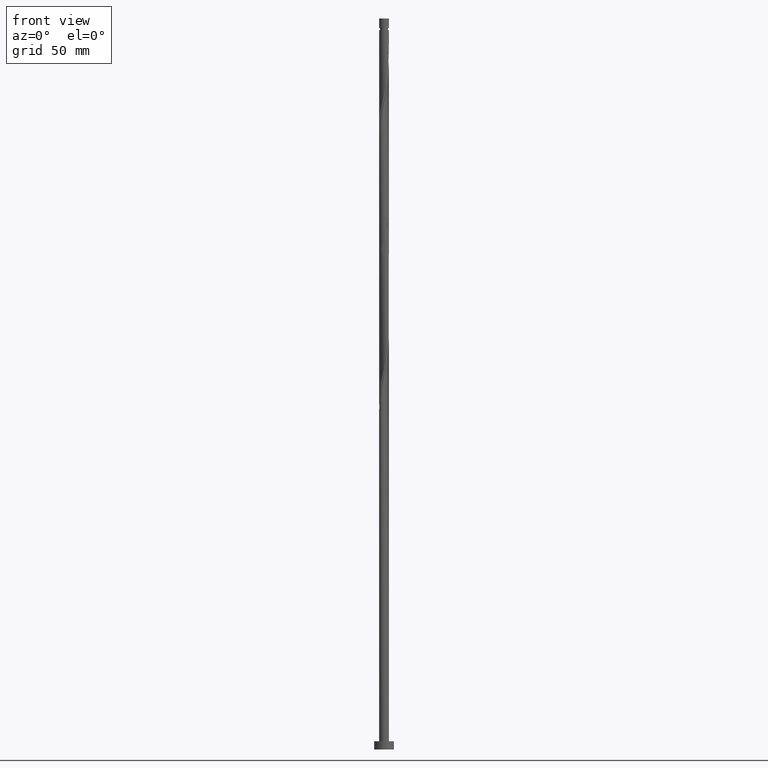
[diagram: clean part render]
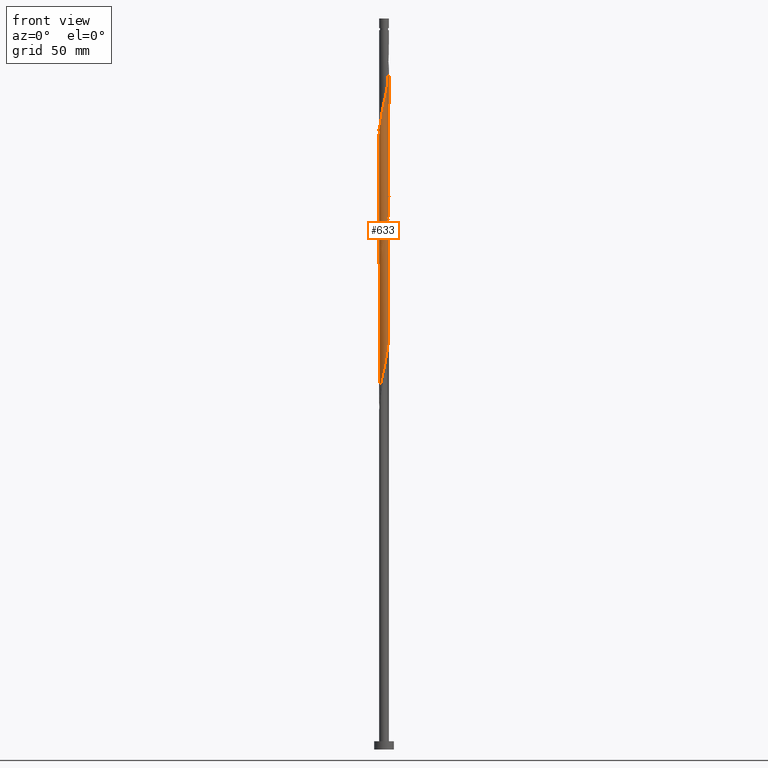
[diagram: same view with one face highlighted and labeled with its STEP entity id]
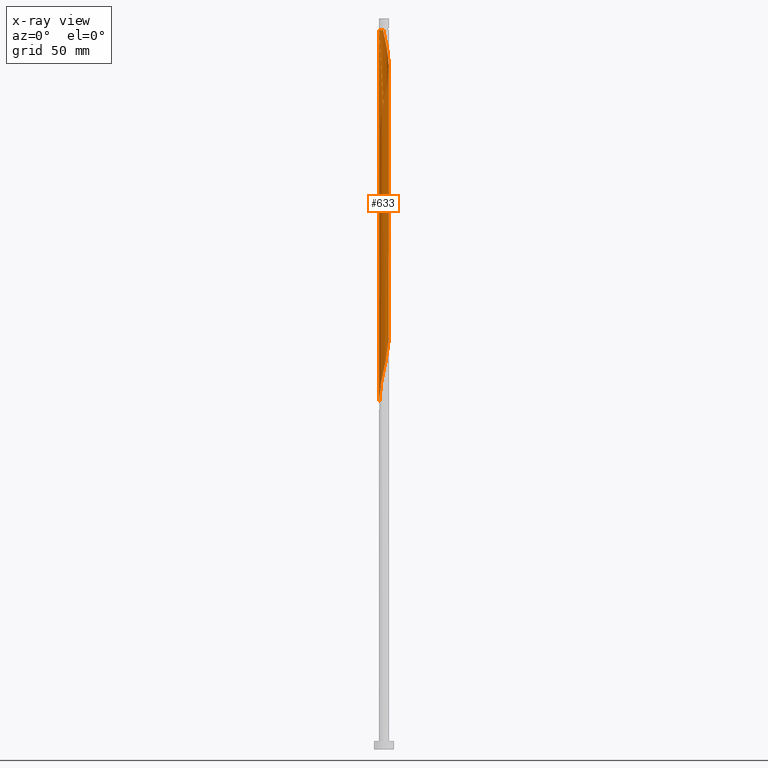
[diagram: x-ray of the same camera — body ghosted, the highlighted face saturated]
A machine part, front view. The second image highlights one B-rep face of the part: STEP entity #633.
The next image is the same camera in x-ray: the body ghosted, the highlighted face saturated — about 0% of this face is hidden behind the body in this view.
In plain terms, the highlighted cylindrical surface (bore or boss wall) has radius 3 mm, axis along (-0, -0, -1).
Its self-contained STEP definition (entity closure, byte-faithful):
#9 = CARTESIAN_POINT ( 'NONE',  ( 2.487746701027916618, -1.676638408102568922, 245.0764755701264903 ) ) ;
#10 = CARTESIAN_POINT ( 'NONE',  ( 2.129757576223802129, -2.112849418798544487, 403.9306422367931759 ) ) ;
#18 = CARTESIAN_POINT ( 'NONE',  ( -1.159086966227606430, -2.767041272681216135, 310.1806422367931191 ) ) ;
#26 = CARTESIAN_POINT ( 'NONE',  ( -2.129757576223799465, -2.112849418798540047, 304.9723089034597479 ) ) ;
#28 = CARTESIAN_POINT ( 'NONE',  ( 2.776191901540425278, 1.136995393931458986, 258.0973089034598047 ) ) ;
#37 = EDGE_CURVE ( 'NONE', #827, #1615, #1006, .T. ) ;
#44 =( BOUNDED_CURVE ( )  B_SPLINE_CURVE ( 2, ( #663, #1916, #1329, #1287, #1445, #1157, #1893, #1736, #974, #1757, #381, #997, #851, #1805, #716, #1815, #417, #1667, #1511, #876, #868, #1980, #1031, #1054, #1659, #1491, #137, #737, #1019, #1639, #119, #147, #1379, #728, #1371 ),
 .UNSPECIFIED., .F., .T. ) 
 B_SPLINE_CURVE_WITH_KNOTS ( ( 3, 2, 2, 2, 2, 2, 2, 2, 2, 2, 2, 2, 2, 2, 2, 2, 2, 3 ),
 ( 0.4295286902180872612, 0.4296875000000000000, 0.4375000000000000000, 0.4453125000000000000, 0.4531250000000000000, 0.4609375000000000000, 0.4687500000000000000, 0.4765625000000000000, 0.4843750000000000000, 0.4921875000000000000, 0.5000000000000000000, 0.5078125000000000000, 0.5156250000000000000, 0.5234375000000000000, 0.5312500000000000000, 0.5390625000000000000, 0.5468750000000000000, 0.5545286902180874833 ),
 .UNSPECIFIED. ) 
 CURVE ( )  GEOMETRIC_REPRESENTATION_ITEM ( )  RATIONAL_B_SPLINE_CURVE ( ( 0.9089165573359683226, 0.9090019243628730816, 0.9090909090909647938, 0.9047133878838706789, 0.9090909090909647938, 0.9047133878838706789, 0.9090909090909647938, 0.9047133878838706789, 0.9090909090909647938, 0.9047133878838706789, 0.9090909090909647938, 0.9047133878838706789, 0.9090909090909647938, 0.9047133878838706789, 0.9090909090909647938, 0.9047133878838706789, 0.9090909090909647938, 0.9047133878838706789, 0.9090909090909647938, 0.9047133878838706789, 0.9090909090909647938, 0.9047133878838706789, 0.9090909090909647938, 0.9047133878838706789, 0.9090909090909647938, 0.9047133878838706789, 0.9090909090909647938, 0.9047133878838706789, 0.9090909090909647938, 0.9047133878838706789, 0.9090909090909647938, 0.9047133878838706789, 0.9090909090909647938, 0.9048023726119623911, 0.9089165573359684336 ) ) 
 REPRESENTATION_ITEM ( '' )  );
#47 = CARTESIAN_POINT ( 'NONE',  ( 2.501031355072564466, -1.656756518304340897, 406.5348089034598047 ) ) ;
#58 = CARTESIAN_POINT ( 'NONE',  ( 1.921660071883965593, -2.322612231291377949, 402.6285589034597479 ) ) ;
#77 = CARTESIAN_POINT ( 'NONE',  ( 0.5735401742041593698, -2.944664950138446535, 234.6598089034597763 ) ) ;
#110 = CARTESIAN_POINT ( 'NONE',  ( 0.5735401742041630335, 2.944664950138451420, 432.5764755701264903 ) ) ;
#113 = ORIENTED_EDGE ( 'NONE', *, *, #1939, .F. ) ;
#119 = CARTESIAN_POINT ( 'NONE',  ( 2.776191901540425278, 1.136995393931458986, 341.4306422367931191 ) ) ;
#132 = CARTESIAN_POINT ( 'NONE',  ( 2.998798625402026907, -0.3074277363939146857, 334.9202255701265472 ) ) ;
#137 = CARTESIAN_POINT ( 'NONE',  ( 2.129757576223799465, 2.112849418798539602, 346.6389755701264335 ) ) ;
#147 = CARTESIAN_POINT ( 'NONE',  ( 2.888176173499368282, 0.8635643575599492028, 340.1285589034599184 ) ) ;
#150 = CARTESIAN_POINT ( 'NONE',  ( -1.136995393931460541, 2.776191901540425278, 278.9306422367931191 ) ) ;
#152 = CARTESIAN_POINT ( 'NONE',  ( -1.136995393931462539, -2.776191901540430607, 388.3056422367931191 ) ) ;
#160 = CARTESIAN_POINT ( 'NONE',  ( -0.8635643575599494248, 2.888176173499368282, 277.6285589034598047 ) ) ;
#161 = CARTESIAN_POINT ( 'NONE',  ( -2.322612231291377949, -1.921660071883965593, 381.7952255701265472 ) ) ;
#170 = CARTESIAN_POINT ( 'NONE',  ( 2.337855080563638221, 1.903086606305703254, 262.0035589034598615 ) ) ;
#186 = CARTESIAN_POINT ( 'NONE',  ( -2.888176173499368282, -0.8635643575599497579, 298.4618922367931191 ) ) ;
#197 = CARTESIAN_POINT ( 'NONE',  ( -2.998798625402031348, -0.3074277363939123542, 373.9827255701264903 ) ) ;
#209 = CARTESIAN_POINT ( 'NONE',  ( -0.8635643575599516453, -2.888176173499370503, 389.6077255701264335 ) ) ;
#218 = CARTESIAN_POINT ( 'NONE',  ( -0.3074277363939130203, -2.998798625402027351, 314.0868922367932896 ) ) ;
#217 = CARTESIAN_POINT ( 'NONE',  ( 2.112849418798544487, 2.129757576223802129, 424.7639755701265472 ) ) ;
#221 = VERTEX_POINT ( 'NONE', #1153 ) ;
#242 = CARTESIAN_POINT ( 'NONE',  ( -0.01195587277277116757, -2.999976176089777624, 232.0556422367931191 ) ) ;
#256 = CYLINDRICAL_SURFACE ( 'NONE', #784, 3.000000000000000444 ) ;
#258 = CARTESIAN_POINT ( 'NONE',  ( 2.999999999999999556, 1.128549029991760885E-15, 336.2750058814565364 ) ) ;
#260 = CARTESIAN_POINT ( 'NONE',  ( -1.921660071883963150, -2.322612231291373952, 222.9410589034598047 ) ) ;
#278 = CARTESIAN_POINT ( 'NONE',  ( -1.903086606305704365, 2.337855080563637777, 282.8368922367931759 ) ) ;
#303 = CARTESIAN_POINT ( 'NONE',  ( 0.01195587277277158564, 2.999976176089777624, 273.7223089034597479 ) ) ;
#313 = CARTESIAN_POINT ( 'NONE',  ( 2.776191901540429718, -1.136995393931462761, 409.1389755701264903 ) ) ;
#321 = CARTESIAN_POINT ( 'NONE',  ( 0.3074277363939121877, -2.998798625402031348, 394.8160589034598047 ) ) ;
#323 = VERTEX_POINT ( 'NONE', #908 ) ;
#352 = CARTESIAN_POINT ( 'NONE',  ( 1.676638408102569588, -2.487746701027922835, 401.3264755701264903 ) ) ;
#355 = ORIENTED_EDGE ( 'NONE', *, *, #725, .F. ) ;
#363 = CARTESIAN_POINT ( 'NONE',  ( 2.322612231291377949, 1.921660071883965148, 423.4618922367931191 ) ) ;
#377 = CARTESIAN_POINT ( 'NONE',  ( -2.888176173499368282, -0.8635643575599497579, 215.1285589034598331 ) ) ;
#381 = CARTESIAN_POINT ( 'NONE',  ( -2.112849418798539602, 2.129757576223800353, 367.4723089034598047 ) ) ;
#383 = CARTESIAN_POINT ( 'NONE',  ( -0.3074277363939132424, 2.998798625402031792, 436.4827255701264903 ) ) ;
#417 = CARTESIAN_POINT ( 'NONE',  ( -0.5735401742041597029, 2.944664950138446091, 359.6598089034597479 ) ) ;
#419 = DIRECTION ( 'NONE',  ( -0.000000000000000000, -0.000000000000000000, -1.000000000000000000 ) ) ;
#432 = CARTESIAN_POINT ( 'NONE',  ( -0.8865571881340393867, -2.881201374597972098, 228.1493922367932043 ) ) ;
#441 = CARTESIAN_POINT ( 'NONE',  ( 3.000000000000000444, 3.673940397442060361E-16, 437.7848089034598047 ) ) ;
#450 = CARTESIAN_POINT ( 'NONE',  ( -2.881201374597976539, -0.8865571881340396088, 376.5868922367931191 ) ) ;
#461 = CARTESIAN_POINT ( 'NONE',  ( 1.903086606305703699, -2.337855080563638221, 241.1702255701265756 ) ) ;
#468 = LINE ( 'NONE', #1097, #1045 ) ;
#477 = CARTESIAN_POINT ( 'NONE',  ( -0.5735401742041597029, 2.944664950138446091, 276.3264755701264335 ) ) ;
#478 = CARTESIAN_POINT ( 'NONE',  ( 2.881201374597972542, -0.8865571881340383875, 332.3160589034598047 ) ) ;
#492 = CARTESIAN_POINT ( 'NONE',  ( -2.939999999999999947, 0.5969924622639759537, 291.9514755701264335 ) ) ;
#495 = CARTESIAN_POINT ( 'NONE',  ( 1.136995393931459208, -2.776191901540425278, 320.5973089034598047 ) ) ;
#507 = CARTESIAN_POINT ( 'NONE',  ( 0.2835159908483691482, -3.001153726777527897, 316.6910589034599752 ) ) ;
#506 = CARTESIAN_POINT ( 'NONE',  ( 2.999976176089782065, 0.01195587277276977979, 414.3473089034598047 ) ) ;
#524 = CARTESIAN_POINT ( 'NONE',  ( -2.999999999999999556, -8.340638991268588486E-16, 211.2750058814566501 ) ) ;
#528 = CARTESIAN_POINT ( 'NONE',  ( -3.000000000000000444, 0.000000000000000000, 444.8000000000000114 ) ) ;
#542 = CARTESIAN_POINT ( 'NONE',  ( -2.767041272681216135, 1.159086966227605320, 289.3473089034598047 ) ) ;
#550 = AXIS2_PLACEMENT_3D ( 'NONE', #1008, #674, #985 ) ;
#556 = CARTESIAN_POINT ( 'NONE',  ( -0.5969924622639761758, -2.939999999999999947, 229.4514755701264619 ) ) ;
#574 = CARTESIAN_POINT ( 'NONE',  ( -3.000000000000000444, 0.000000000000000000, 444.8000000000000114 ) ) ;
#595 = CARTESIAN_POINT ( 'NONE',  ( 3.001153726777527897, 0.2835159908483690372, 254.1910589034598900 ) ) ;
#603 = CARTESIAN_POINT ( 'NONE',  ( 2.940000000000004832, 0.5969924622639757317, 416.9514755701264903 ) ) ;
#606 = ORIENTED_EDGE ( 'NONE', *, *, #623, .T. ) ;
#612 = CARTESIAN_POINT ( 'NONE',  ( 2.322612231291373952, -1.921660071883963372, 243.7743922367932043 ) ) ;
#614 = CARTESIAN_POINT ( 'NONE',  ( 2.944664950138451420, -0.5735401742041628115, 411.7431422367931191 ) ) ;
#621 = CARTESIAN_POINT ( 'NONE',  ( -1.676638408102567590, -2.487746701027918395, 307.5764755701264335 ) ) ;
#623 = EDGE_CURVE ( 'NONE', #1898, #827, #468, .T. ) ;
#625 = CARTESIAN_POINT ( 'NONE',  ( 2.129757576223799465, 2.112849418798539602, 263.3056422367931759 ) ) ;
#631 = CARTESIAN_POINT ( 'NONE',  ( -2.664207629581485381, -1.410426430302970768, 301.0660589034598047 ) ) ;
#633 = ADVANCED_FACE ( 'NONE', ( #771 ), #256, .T. ) ;
#641 = CARTESIAN_POINT ( 'NONE',  ( -1.431616744321172474, -2.652881170764462393, 308.8785589034598615 ) ) ;
#651 = CARTESIAN_POINT ( 'NONE',  ( -1.921660071883963150, -2.322612231291373952, 306.2743922367932328 ) ) ;
#663 = CARTESIAN_POINT ( 'NONE',  ( -2.999999999999999556, -8.340638991268588486E-16, 377.9416725481233357 ) ) ;
#666 = CARTESIAN_POINT ( 'NONE',  ( 2.112849418798539602, -2.129757576223799465, 325.8056422367931191 ) ) ;
#665 = CARTESIAN_POINT ( 'NONE',  ( 2.888176173499370503, -0.8635643575599518673, 410.4410589034598047 ) ) ;
#674 = DIRECTION ( 'NONE',  ( -0.000000000000000000, -0.000000000000000000, -1.000000000000000000 ) ) ;
#677 = CARTESIAN_POINT ( 'NONE',  ( -0.5969924622639761758, -2.939999999999999947, 312.7848089034597479 ) ) ;
#693 = ORIENTED_EDGE ( 'NONE', *, *, #1440, .T. ) ;
#711 = CARTESIAN_POINT ( 'NONE',  ( -2.487746701027918395, 1.676638408102567368, 286.7431422367931191 ) ) ;
#716 = CARTESIAN_POINT ( 'NONE',  ( -1.136995393931460541, 2.776191901540425278, 362.2639755701264335 ) ) ;
#718 = VECTOR ( 'NONE', #419, 1000.000000000000000 ) ;
#719 = CARTESIAN_POINT ( 'NONE',  ( 0.000000000000000000, 0.000000000000000000, 444.8000000000000114 ) ) ;
#725 = EDGE_CURVE ( 'NONE', #1928, #221, #1505, .T. ) ;
#728 = CARTESIAN_POINT ( 'NONE',  ( 3.000000000000002665, 0.2894394447869312881, 337.5509859868726608 ) ) ;
#737 = CARTESIAN_POINT ( 'NONE',  ( 2.337855080563638221, 1.903086606305703254, 345.3368922367932328 ) ) ;
#763 = CARTESIAN_POINT ( 'NONE',  ( 2.664207629581487602, -1.410426430302975209, 407.8368922367931191 ) ) ;
#771 = FACE_OUTER_BOUND ( 'NONE', #1333, .T. ) ;
#774 = CARTESIAN_POINT ( 'NONE',  ( 2.767041272681216135, -1.159086966227606430, 247.6806422367931191 ) ) ;
#784 = AXIS2_PLACEMENT_3D ( 'NONE', #719, #862, #1332 ) ;
#793 = CARTESIAN_POINT ( 'NONE',  ( -2.501031355072560025, -1.656756518304338011, 302.3681422367931191 ) ) ;
#795 = CARTESIAN_POINT ( 'NONE',  ( 0.5969924622639766199, 2.939999999999999947, 271.1181422367931191 ) ) ;
#803 = CARTESIAN_POINT ( 'NONE',  ( 0.8865571881340386096, 2.881201374597972542, 269.8160589034598047 ) ) ;
#804 = CARTESIAN_POINT ( 'NONE',  ( 2.652881170764462393, -1.431616744321172474, 329.7118922367932896 ) ) ;
#812 = CARTESIAN_POINT ( 'NONE',  ( -2.999999999999959144, 0.000000000000000000, 437.7848089034598047 ) ) ;
#824 = CARTESIAN_POINT ( 'NONE',  ( -2.112849418798544043, -2.129757576223802129, 383.0973089034598047 ) ) ;
#827 = VERTEX_POINT ( 'NONE', #1850 ) ;
#836 = ORIENTED_EDGE ( 'NONE', *, *, #1547, .F. ) ;
#844 = CARTESIAN_POINT ( 'NONE',  ( 1.903086606305707251, 2.337855080563640886, 426.0660589034598047 ) ) ;
#851 = CARTESIAN_POINT ( 'NONE',  ( -1.656756518304338011, 2.501031355072560469, 364.8681422367931191 ) ) ;
#862 = DIRECTION ( 'NONE',  ( -0.000000000000000000, -0.000000000000000000, -1.000000000000000000 ) ) ;
#863 = CARTESIAN_POINT ( 'NONE',  ( 2.999999999999999556, -0.005977960122795210676, 336.2486523269392933 ) ) ;
#864 = CARTESIAN_POINT ( 'NONE',  ( -1.676638408102567590, -2.487746701027918395, 224.2431422367931475 ) ) ;
#868 = CARTESIAN_POINT ( 'NONE',  ( 0.5969924622639766199, 2.939999999999999947, 354.4514755701264903 ) ) ;
#870 = CARTESIAN_POINT ( 'NONE',  ( 1.656756518304340897, 2.501031355072564022, 427.3681422367930622 ) ) ;
#876 = CARTESIAN_POINT ( 'NONE',  ( 0.3074277363939130203, 2.998798625402027351, 355.7535589034599184 ) ) ;
#878 = VECTOR ( 'NONE', #1465, 1000.000000000000000 ) ;
#881 = ORIENTED_EDGE ( 'NONE', *, *, #37, .F. ) ;
#907 = CARTESIAN_POINT ( 'NONE',  ( -2.940000000000004832, -0.5969924622639761758, 375.2848089034598615 ) ) ;
#908 = CARTESIAN_POINT ( 'NONE',  ( -3.000000000000005329, 1.708200142010639410E-15, 372.6279452587962737 ) ) ;
#916 = CARTESIAN_POINT ( 'NONE',  ( 2.888176173499368282, 0.8635643575599492028, 256.7952255701264903 ) ) ;
#917 = CARTESIAN_POINT ( 'NONE',  ( -3.000000000000005773, -0.005977960122786295065, 372.6542988133136305 ) ) ;
#934 = CARTESIAN_POINT ( 'NONE',  ( -0.8865571881340393867, -2.881201374597972098, 311.4827255701265472 ) ) ;
#935 = DIRECTION ( 'NONE',  ( -0.000000000000000000, -0.000000000000000000, -1.000000000000000000 ) ) ;
#937 = CARTESIAN_POINT ( 'NONE',  ( 2.939999999999999947, -0.5969924622639762868, 250.2848089034597763 ) ) ;
#948 = CARTESIAN_POINT ( 'NONE',  ( 1.159086966227606652, 2.767041272681216135, 268.5139755701264903 ) ) ;
#965 = CARTESIAN_POINT ( 'NONE',  ( 2.337855080563639554, -1.903086606305708139, 405.2327255701264335 ) ) ;
#968 = ORIENTED_EDGE ( 'NONE', *, *, #1334, .T. ) ;
#974 = CARTESIAN_POINT ( 'NONE',  ( -2.487746701027918395, 1.676638408102567368, 370.0764755701264903 ) ) ;
#976 = CARTESIAN_POINT ( 'NONE',  ( 0.5969924622639760647, -2.940000000000004832, 396.1181422367931191 ) ) ;
#985 = DIRECTION ( 'NONE',  ( -1.000000000000000000, 0.000000000000000000, 0.000000000000000000 ) ) ;
#990 = ORIENTED_EDGE ( 'NONE', *, *, #623, .F. ) ;
#997 = CARTESIAN_POINT ( 'NONE',  ( -1.903086606305704365, 2.337855080563637777, 366.1702255701266040 ) ) ;
#1006 =( BOUNDED_CURVE ( )  B_SPLINE_CURVE ( 2, ( #258, #863, #1243, #132, #1867, #478, #1720, #804, #1268, #1572, #666, #1417, #1877, #1116, #495, #1125, #1437, #507, #1136, #218, #677, #934, #18, #641, #621, #651, #26, #1552, #793, #631, #1258, #186, #1865, #1707, #1278, #1884, #492, #1026, #542, #1625, #711, #1799, #1646, #278, #1496, #1523, #150, #160, #477, #1680, #303, #1260, #795, #803, #948, #1522, #1408, #1974, #625, #170, #1544, #1106, #28, #916, #1241, #595, #1076, #1222, #937, #1533, #774, #1067, #9, #612, #1848, #461, #1090, #1252, #1859, #1701, #77, #1159, #242, #1719, #556, #432, #1012, #1784, #864, #260, #1461, #1801, #1765, #1478, #1163, #377, #1336, #1788, #524 ),
 .UNSPECIFIED., .F., .T. ) 
 B_SPLINE_CURVE_WITH_KNOTS ( ( 3, 2, 2, 2, 2, 2, 2, 2, 2, 2, 2, 2, 2, 2, 2, 2, 2, 2, 2, 2, 2, 2, 2, 2, 2, 2, 2, 2, 2, 2, 2, 2, 2, 2, 2, 2, 2, 2, 2, 2, 2, 2, 2, 2, 2, 2, 2, 2, 2, 3 ),
 ( 0.5545286902180874833, 0.5546875000000000000, 0.5625000000000000000, 0.5703125000000000000, 0.5781250000000000000, 0.5859375000000000000, 0.5937500000000000000, 0.6015625000000000000, 0.6093750000000000000, 0.6171875000000000000, 0.6250000000000000000, 0.6328125000000000000, 0.6406250000000000000, 0.6484375000000000000, 0.6562500000000000000, 0.6640625000000000000, 0.6718750000000000000, 0.6796875000000000000, 0.6875000000000000000, 0.6953125000000000000, 0.7031250000000000000, 0.7109375000000000000, 0.7187500000000000000, 0.7265625000000000000, 0.7343750000000000000, 0.7421875000000000000, 0.7500000000000000000, 0.7578125000000000000, 0.7656250000000000000, 0.7734375000000000000, 0.7812500000000000000, 0.7890625000000000000, 0.7968750000000000000, 0.8046875000000000000, 0.8125000000000000000, 0.8203125000000000000, 0.8281250000000000000, 0.8359375000000000000, 0.8437500000000000000, 0.8515625000000000000, 0.8593750000000000000, 0.8671875000000000000, 0.8750000000000000000, 0.8828125000000000000, 0.8906250000000000000, 0.8984375000000000000, 0.9062500000000000000, 0.9140625000000000000, 0.9218750000000000000, 0.9295286902180872612 ),
 .UNSPECIFIED. ) 
 CURVE ( )  GEOMETRIC_REPRESENTATION_ITEM ( )  RATIONAL_B_SPLINE_CURVE ( ( 0.9089165573359684336, 0.9090019243628730816, 0.9090909090909647938, 0.9047133878838706789, 0.9090909090909647938, 0.9047133878838706789, 0.9090909090909647938, 0.9047133878838706789, 0.9090909090909647938, 0.9047133878838706789, 0.9090909090909647938, 0.9047133878838706789, 0.9090909090909647938, 0.9047133878838706789, 0.9090909090909647938, 0.9047133878838706789, 0.9090909090909647938, 0.9047133878838706789, 0.9090909090909647938, 0.9047133878838706789, 0.9090909090909647938, 0.9047133878838706789, 0.9090909090909647938, 0.9047133878838706789, 0.9090909090909647938, 0.9047133878838706789, 0.9090909090909647938, 0.9047133878838706789, 0.9090909090909647938, 0.9047133878838706789, 0.9090909090909647938, 0.9047133878838706789, 0.9090909090909647938, 0.9047133878838706789, 0.9090909090909647938, 0.9047133878838706789, 0.9090909090909647938, 0.9047133878838706789, 0.9090909090909647938, 0.9047133878838706789, 0.9090909090909647938, 0.9047133878838706789, 0.9090909090909647938, 0.9047133878838706789, 0.9090909090909647938, 0.9047133878838706789, 0.9090909090909647938, 0.9047133878838706789, 0.9090909090909647938, 0.9047133878838706789, 0.9090909090909647938, 0.9047133878838706789, 0.9090909090909647938, 0.9047133878838706789, 0.9090909090909647938, 0.9047133878838706789, 0.9090909090909647938, 0.9047133878838706789, 0.9090909090909647938, 0.9047133878838706789, 0.9090909090909647938, 0.9047133878838706789, 0.9090909090909647938, 0.9047133878838706789, 0.9090909090909647938, 0.9047133878838706789, 0.9090909090909647938, 0.9047133878838706789, 0.9090909090909647938, 0.9047133878838706789, 0.9090909090909647938, 0.9047133878838706789, 0.9090909090909647938, 0.9047133878838706789, 0.9090909090909647938, 0.9047133878838706789, 0.9090909090909647938, 0.9047133878838706789, 0.9090909090909647938, 0.9047133878838706789, 0.9090909090909647938, 0.9047133878838706789, 0.9090909090909647938, 0.9047133878838706789, 0.9090909090909647938, 0.9047133878838706789, 0.9090909090909647938, 0.9047133878838706789, 0.9090909090909647938, 0.9047133878838706789, 0.9090909090909647938, 0.9047133878838706789, 0.9090909090909647938, 0.9047133878838706789, 0.9090909090909647938, 0.9047133878838706789, 0.9090909090909647938, 0.9048023726119623911, 0.9089165573359683226 ) ) 
 REPRESENTATION_ITEM ( '' )  );
#1008 = CARTESIAN_POINT ( 'NONE',  ( 0.000000000000000000, 0.000000000000000000, 437.7848089034598047 ) ) ;
#1012 = CARTESIAN_POINT ( 'NONE',  ( -1.159086966227606430, -2.767041272681216135, 226.8473089034598331 ) ) ;
#1019 = CARTESIAN_POINT ( 'NONE',  ( 2.501031355072560469, 1.656756518304337567, 344.0348089034597479 ) ) ;
#1026 = CARTESIAN_POINT ( 'NONE',  ( -2.881201374597972098, 0.8865571881340391647, 290.6493922367932328 ) ) ;
#1031 = CARTESIAN_POINT ( 'NONE',  ( 1.159086966227606652, 2.767041272681216135, 351.8473089034598047 ) ) ;
#1034 = CARTESIAN_POINT ( 'NONE',  ( 0.2835159908483712576, 3.001153726777531894, 433.8785589034598047 ) ) ;
#1045 = VECTOR ( 'NONE', #935, 1000.000000000000000 ) ;
#1054 = CARTESIAN_POINT ( 'NONE',  ( 1.431616744321172918, 2.652881170764462393, 350.5452255701264903 ) ) ;
#1067 = CARTESIAN_POINT ( 'NONE',  ( 2.652881170764462393, -1.431616744321172474, 246.3785589034598331 ) ) ;
#1076 = CARTESIAN_POINT ( 'NONE',  ( 2.999976176089777624, -0.01195587277277137747, 252.8889755701264619 ) ) ;
#1079 = CARTESIAN_POINT ( 'NONE',  ( -1.903086606305707917, -2.337855080563639998, 384.3993922367931759 ) ) ;
#1090 = CARTESIAN_POINT ( 'NONE',  ( 1.656756518304338011, -2.501031355072560469, 239.8681422367931475 ) ) ;
#1097 = CARTESIAN_POINT ( 'NONE',  ( 3.000000000000000444, 3.673940397442060361E-16, 444.8000000000000114 ) ) ;
#1106 = CARTESIAN_POINT ( 'NONE',  ( 2.664207629581484937, 1.410426430302972101, 259.3993922367931759 ) ) ;
#1116 = CARTESIAN_POINT ( 'NONE',  ( 1.410426430302970768, -2.664207629581485381, 321.8993922367930622 ) ) ;
#1125 = CARTESIAN_POINT ( 'NONE',  ( 0.8635643575599494248, -2.888176173499368282, 319.2952255701265472 ) ) ;
#1136 = CARTESIAN_POINT ( 'NONE',  ( -0.01195587277277116757, -2.999976176089777624, 315.3889755701264335 ) ) ;
#1135 = CARTESIAN_POINT ( 'NONE',  ( 2.881201374597976539, 0.8865571881340381655, 418.2535589034598047 ) ) ;
#1153 = CARTESIAN_POINT ( 'NONE',  ( -2.999999999999999556, -8.340638991268588486E-16, 377.9416725481232788 ) ) ;
#1157 = CARTESIAN_POINT ( 'NONE',  ( -2.881201374597972098, 0.8865571881340391647, 373.9827255701264903 ) ) ;
#1159 = CARTESIAN_POINT ( 'NONE',  ( 0.2835159908483691482, -3.001153726777527897, 233.3577255701265756 ) ) ;
#1160 = CARTESIAN_POINT ( 'NONE',  ( -0.01195587277276956815, 2.999976176089782065, 435.1806422367931191 ) ) ;
#1163 = CARTESIAN_POINT ( 'NONE',  ( -2.776191901540425278, -1.136995393931459208, 216.4306422367930907 ) ) ;
#1186 = CARTESIAN_POINT ( 'NONE',  ( -0.5969924622640349066, 2.940000000000802416, 437.7848089034597479 ) ) ;
#1207 = CARTESIAN_POINT ( 'NONE',  ( -2.999999999999999556, -8.340638991268588486E-16, 211.2750058814566501 ) ) ;
#1222 = CARTESIAN_POINT ( 'NONE',  ( 2.998798625402026907, -0.3074277363939146857, 251.5868922367932612 ) ) ;
#1231 = CARTESIAN_POINT ( 'NONE',  ( 2.767041272681221464, 1.159086966227607096, 419.5556422367931191 ) ) ;
#1241 = CARTESIAN_POINT ( 'NONE',  ( 2.944664950138446091, 0.5735401742041603690, 255.4931422367931475 ) ) ;
#1243 = CARTESIAN_POINT ( 'NONE',  ( 2.999976176089777624, -0.01195587277277137747, 336.2223089034597479 ) ) ;
#1244 = CARTESIAN_POINT ( 'NONE',  ( 2.487746701027922391, 1.676638408102570699, 422.1598089034598615 ) ) ;
#1252 = CARTESIAN_POINT ( 'NONE',  ( 1.410426430302970768, -2.664207629581485381, 238.5660589034598900 ) ) ;
#1258 = CARTESIAN_POINT ( 'NONE',  ( -2.776191901540425278, -1.136995393931459208, 299.7639755701264903 ) ) ;
#1260 = CARTESIAN_POINT ( 'NONE',  ( 0.3074277363939130203, 2.998798625402027351, 272.4202255701264903 ) ) ;
#1268 = CARTESIAN_POINT ( 'NONE',  ( 2.487746701027916618, -1.676638408102568922, 328.4098089034598047 ) ) ;
#1278 = CARTESIAN_POINT ( 'NONE',  ( -2.999976176089776736, 0.01195587277277169493, 294.5556422367931191 ) ) ;
#1280 = CARTESIAN_POINT ( 'NONE',  ( 1.431616744321173140, -2.652881170764465946, 400.0243922367931191 ) ) ;
#1287 = CARTESIAN_POINT ( 'NONE',  ( -2.998798625402027351, 0.3074277363939129093, 376.5868922367931191 ) ) ;
#1298 = LINE ( 'NONE', #528, #878 ) ;
#1329 = CARTESIAN_POINT ( 'NONE',  ( -2.999976176089776736, 0.01195587277277169493, 377.8889755701264903 ) ) ;
#1332 = DIRECTION ( 'NONE',  ( -1.000000000000000000, 0.000000000000000000, 0.000000000000000000 ) ) ;
#1333 = EDGE_LOOP ( 'NONE', ( #355, #968, #113, #693, #881, #990, #606, #836 ) ) ;
#1334 = EDGE_CURVE ( 'NONE', #1928, #1606, #1427, .T. ) ;
#1336 = CARTESIAN_POINT ( 'NONE',  ( -2.944664950138446091, -0.5735401742041595918, 213.8264755701264619 ) ) ;
#1343 = CARTESIAN_POINT ( 'NONE',  ( 1.410426430302975431, 2.664207629581486270, 428.6702255701264903 ) ) ;
#1371 = CARTESIAN_POINT ( 'NONE',  ( 2.999999999999999556, 1.128549029991760885E-15, 336.2750058814565364 ) ) ;
#1374 =( BOUNDED_CURVE ( )  B_SPLINE_CURVE ( 2, ( #1728, #917, #1582, #197, #907, #450, #1535, #1593, #1447, #161, #824, #1079, #1691, #1524, #152, #209, #1738, #1895, #1392, #321, #976, #1681, #1425, #1280, #352, #58, #10, #965, #47, #763, #313, #665, #614, #1384, #506, #1886, #603, #1135, #1231, #1836, #1244, #363, #217, #844, #870, #1343, #1484, #1918, #110, #1034, #1160, #383, #1493 ),
 .UNSPECIFIED., .F., .T. ) 
 B_SPLINE_CURVE_WITH_KNOTS ( ( 3, 2, 2, 2, 2, 2, 2, 2, 2, 2, 2, 2, 2, 2, 2, 2, 2, 2, 2, 2, 2, 2, 2, 2, 2, 2, 3 ),
 ( 0.5545286902180872612, 0.5546875000000000000, 0.5625000000000000000, 0.5703125000000000000, 0.5781250000000000000, 0.5859375000000000000, 0.5937500000000000000, 0.6015625000000000000, 0.6093750000000000000, 0.6171875000000000000, 0.6250000000000000000, 0.6328125000000000000, 0.6406250000000000000, 0.6484375000000000000, 0.6562500000000000000, 0.6640625000000000000, 0.6718750000000000000, 0.6796875000000000000, 0.6875000000000000000, 0.6953125000000000000, 0.7031250000000000000, 0.7109375000000000000, 0.7187500000000000000, 0.7265625000000000000, 0.7343750000000000000, 0.7421875000000000000, 0.7500000000000000000 ),
 .UNSPECIFIED. ) 
 CURVE ( )  GEOMETRIC_REPRESENTATION_ITEM ( )  RATIONAL_B_SPLINE_CURVE ( ( 0.9089165573359742067, 0.9090019243628789658, 0.9090909090909707890, 0.9047133878838768961, 0.9090909090909707890, 0.9047133878838768961, 0.9090909090909707890, 0.9047133878838768961, 0.9090909090909707890, 0.9047133878838768961, 0.9090909090909707890, 0.9047133878838768961, 0.9090909090909707890, 0.9047133878838768961, 0.9090909090909707890, 0.9047133878838768961, 0.9090909090909707890, 0.9047133878838768961, 0.9090909090909707890, 0.9047133878838768961, 0.9090909090909707890, 0.9047133878838768961, 0.9090909090909707890, 0.9047133878838768961, 0.9090909090909707890, 0.9047133878838768961, 0.9090909090909707890, 0.9047133878838768961, 0.9090909090909707890, 0.9047133878838768961, 0.9090909090909707890, 0.9047133878838768961, 0.9090909090909707890, 0.9047133878838768961, 0.9090909090909707890, 0.9047133878838768961, 0.9090909090909707890, 0.9047133878838768961, 0.9090909090909707890, 0.9047133878838768961, 0.9090909090909707890, 0.9047133878838768961, 0.9090909090909707890, 0.9047133878838768961, 0.9090909090909707890, 0.9047133878838768961, 0.9090909090909707890, 0.9047133878838768961, 0.9090909090909707890, 0.9047133878838768961, 0.9090909090909707890, 0.9047133878838768961, 0.9090909090909707890 ) ) 
 REPRESENTATION_ITEM ( '' )  );
#1379 = CARTESIAN_POINT ( 'NONE',  ( 2.944664950138446091, 0.5735401742041603690, 338.8264755701264903 ) ) ;
#1384 = CARTESIAN_POINT ( 'NONE',  ( 3.001153726777531894, -0.2835159908483709801, 413.0452255701264335 ) ) ;
#1392 = CARTESIAN_POINT ( 'NONE',  ( 0.01195587277277009725, -2.999976176089782065, 393.5139755701264903 ) ) ;
#1408 = CARTESIAN_POINT ( 'NONE',  ( 1.676638408102569144, 2.487746701027916618, 265.9098089034598047 ) ) ;
#1417 = CARTESIAN_POINT ( 'NONE',  ( 1.903086606305703699, -2.337855080563638221, 324.5035589034598047 ) ) ;
#1425 = CARTESIAN_POINT ( 'NONE',  ( 1.159086966227607096, -2.767041272681221464, 398.7223089034598047 ) ) ;
#1427 = CIRCLE ( 'NONE', #550, 2.999999999999959144 ) ;
#1437 = CARTESIAN_POINT ( 'NONE',  ( 0.5735401742041593698, -2.944664950138446535, 317.9931422367931759 ) ) ;
#1440 = EDGE_CURVE ( 'NONE', #323, #1615, #1298, .T. ) ;
#1445 = CARTESIAN_POINT ( 'NONE',  ( -2.939999999999999947, 0.5969924622639759537, 375.2848089034597479 ) ) ;
#1447 = CARTESIAN_POINT ( 'NONE',  ( -2.487746701027922835, -1.676638408102569811, 380.4931422367931191 ) ) ;
#1461 = CARTESIAN_POINT ( 'NONE',  ( -2.129757576223799465, -2.112849418798540047, 221.6389755701264903 ) ) ;
#1465 = DIRECTION ( 'NONE',  ( -0.000000000000000000, -0.000000000000000000, -1.000000000000000000 ) ) ;
#1478 = CARTESIAN_POINT ( 'NONE',  ( -2.664207629581485381, -1.410426430302970768, 217.7327255701265187 ) ) ;
#1484 = CARTESIAN_POINT ( 'NONE',  ( 1.136995393931462761, 2.776191901540429718, 429.9723089034598047 ) ) ;
#1491 = CARTESIAN_POINT ( 'NONE',  ( 1.921660071883963816, 2.322612231291373952, 347.9410589034598047 ) ) ;
#1493 = CARTESIAN_POINT ( 'NONE',  ( -0.5969924622640349066, 2.940000000000802416, 437.7848089034598047 ) ) ;
#1496 = CARTESIAN_POINT ( 'NONE',  ( -1.656756518304338011, 2.501031355072560469, 281.5348089034598047 ) ) ;
#1505 = LINE ( 'NONE', #574, #718 ) ;
#1511 = CARTESIAN_POINT ( 'NONE',  ( 0.01195587277277158564, 2.999976176089777624, 357.0556422367931191 ) ) ;
#1522 = CARTESIAN_POINT ( 'NONE',  ( 1.431616744321172918, 2.652881170764462393, 267.2118922367932328 ) ) ;
#1523 = CARTESIAN_POINT ( 'NONE',  ( -1.410426430302971657, 2.664207629581484937, 280.2327255701264903 ) ) ;
#1524 = CARTESIAN_POINT ( 'NONE',  ( -1.410426430302974099, -2.664207629581488046, 387.0035589034598047 ) ) ;
#1533 = CARTESIAN_POINT ( 'NONE',  ( 2.881201374597972542, -0.8865571881340383875, 248.9827255701265187 ) ) ;
#1535 = CARTESIAN_POINT ( 'NONE',  ( -2.767041272681221464, -1.159086966227606652, 377.8889755701265472 ) ) ;
#1544 = CARTESIAN_POINT ( 'NONE',  ( 2.501031355072560469, 1.656756518304337567, 260.7014755701264903 ) ) ;
#1547 = EDGE_CURVE ( 'NONE', #221, #827, #44, .T. ) ;
#1552 = CARTESIAN_POINT ( 'NONE',  ( -2.337855080563637777, -1.903086606305704587, 303.6702255701264903 ) ) ;
#1572 = CARTESIAN_POINT ( 'NONE',  ( 2.322612231291373952, -1.921660071883963372, 327.1077255701264903 ) ) ;
#1582 = CARTESIAN_POINT ( 'NONE',  ( -2.999976176089782065, -0.01195587277277084318, 372.6806422367931759 ) ) ;
#1593 = CARTESIAN_POINT ( 'NONE',  ( -2.652881170764465946, -1.431616744321173362, 379.1910589034598047 ) ) ;
#1606 = VERTEX_POINT ( 'NONE', #1186 ) ;
#1615 = VERTEX_POINT ( 'NONE', #1207 ) ;
#1625 = CARTESIAN_POINT ( 'NONE',  ( -2.652881170764462393, 1.431616744321172474, 288.0452255701265472 ) ) ;
#1639 = CARTESIAN_POINT ( 'NONE',  ( 2.664207629581484937, 1.410426430302972101, 342.7327255701264903 ) ) ;
#1646 = CARTESIAN_POINT ( 'NONE',  ( -2.112849418798539602, 2.129757576223800353, 284.1389755701264335 ) ) ;
#1659 = CARTESIAN_POINT ( 'NONE',  ( 1.676638408102569144, 2.487746701027916618, 349.2431422367931759 ) ) ;
#1667 = CARTESIAN_POINT ( 'NONE',  ( -0.2835159908483698699, 3.001153726777527897, 358.3577255701265472 ) ) ;
#1680 = CARTESIAN_POINT ( 'NONE',  ( -0.2835159908483698699, 3.001153726777527897, 275.0243922367931759 ) ) ;
#1681 = CARTESIAN_POINT ( 'NONE',  ( 0.8865571881340394977, -2.881201374597976539, 397.4202255701265472 ) ) ;
#1691 = CARTESIAN_POINT ( 'NONE',  ( -1.656756518304340897, -2.501031355072564466, 385.7014755701265472 ) ) ;
#1701 = CARTESIAN_POINT ( 'NONE',  ( 0.8635643575599494248, -2.888176173499368282, 235.9618922367931759 ) ) ;
#1707 = CARTESIAN_POINT ( 'NONE',  ( -3.001153726777527897, -0.2835159908483693147, 295.8577255701266040 ) ) ;
#1719 = CARTESIAN_POINT ( 'NONE',  ( -0.3074277363939130203, -2.998798625402027351, 230.7535589034598615 ) ) ;
#1720 = CARTESIAN_POINT ( 'NONE',  ( 2.767041272681216135, -1.159086966227606430, 331.0139755701264903 ) ) ;
#1728 = CARTESIAN_POINT ( 'NONE',  ( -3.000000000000005329, 1.708200142010639212E-15, 372.6279452587962737 ) ) ;
#1736 = CARTESIAN_POINT ( 'NONE',  ( -2.652881170764462393, 1.431616744321172474, 371.3785589034598047 ) ) ;
#1738 = CARTESIAN_POINT ( 'NONE',  ( -0.5735401742041613682, -2.944664950138451864, 390.9098089034598047 ) ) ;
#1757 = CARTESIAN_POINT ( 'NONE',  ( -2.322612231291373952, 1.921660071883963150, 368.7743922367931759 ) ) ;
#1765 = CARTESIAN_POINT ( 'NONE',  ( -2.501031355072560025, -1.656756518304338011, 219.0348089034598047 ) ) ;
#1784 = CARTESIAN_POINT ( 'NONE',  ( -1.431616744321172474, -2.652881170764462393, 225.5452255701265187 ) ) ;
#1788 = CARTESIAN_POINT ( 'NONE',  ( -3.000000000000000888, -0.2894394447869398923, 212.5509859868726892 ) ) ;
#1799 = CARTESIAN_POINT ( 'NONE',  ( -2.322612231291373952, 1.921660071883963150, 285.4410589034598047 ) ) ;
#1801 = CARTESIAN_POINT ( 'NONE',  ( -2.337855080563637777, -1.903086606305704587, 220.3368922367932043 ) ) ;
#1805 = CARTESIAN_POINT ( 'NONE',  ( -1.410426430302971657, 2.664207629581484937, 363.5660589034598047 ) ) ;
#1815 = CARTESIAN_POINT ( 'NONE',  ( -0.8635643575599494248, 2.888176173499368282, 360.9618922367932328 ) ) ;
#1836 = CARTESIAN_POINT ( 'NONE',  ( 2.652881170764465946, 1.431616744321172696, 420.8577255701264335 ) ) ;
#1848 = CARTESIAN_POINT ( 'NONE',  ( 2.112849418798539602, -2.129757576223799465, 242.4723089034598047 ) ) ;
#1850 = CARTESIAN_POINT ( 'NONE',  ( 3.000000000000000000, 1.128549029991760885E-15, 336.2750058814565364 ) ) ;
#1859 = CARTESIAN_POINT ( 'NONE',  ( 1.136995393931459208, -2.776191901540425278, 237.2639755701264903 ) ) ;
#1865 = CARTESIAN_POINT ( 'NONE',  ( -2.944664950138446091, -0.5735401742041595918, 297.1598089034596910 ) ) ;
#1867 = CARTESIAN_POINT ( 'NONE',  ( 2.939999999999999947, -0.5969924622639762868, 333.6181422367931191 ) ) ;
#1877 = CARTESIAN_POINT ( 'NONE',  ( 1.656756518304338011, -2.501031355072560469, 323.2014755701264903 ) ) ;
#1884 = CARTESIAN_POINT ( 'NONE',  ( -2.998798625402027351, 0.3074277363939129093, 293.2535589034598047 ) ) ;
#1886 = CARTESIAN_POINT ( 'NONE',  ( 2.998798625402031792, 0.3074277363939135199, 415.6493922367931191 ) ) ;
#1893 = CARTESIAN_POINT ( 'NONE',  ( -2.767041272681216135, 1.159086966227605320, 372.6806422367931191 ) ) ;
#1895 = CARTESIAN_POINT ( 'NONE',  ( -0.2835159908483708691, -3.001153726777531894, 392.2118922367931759 ) ) ;
#1898 = VERTEX_POINT ( 'NONE', #441 ) ;
#1916 = CARTESIAN_POINT ( 'NONE',  ( -2.999999999999999556, 0.005977960122787157222, 377.9153189936059789 ) ) ;
#1918 = CARTESIAN_POINT ( 'NONE',  ( 0.8635643575599522004, 2.888176173499370503, 431.2743922367931191 ) ) ;
#1928 = VERTEX_POINT ( 'NONE', #812 ) ;
#1939 = EDGE_CURVE ( 'NONE', #323, #1606, #1374, .T. ) ;
#1974 = CARTESIAN_POINT ( 'NONE',  ( 1.921660071883963816, 2.322612231291373952, 264.6077255701265472 ) ) ;
#1980 = CARTESIAN_POINT ( 'NONE',  ( 0.8865571881340386096, 2.881201374597972542, 353.1493922367931759 ) ) ;